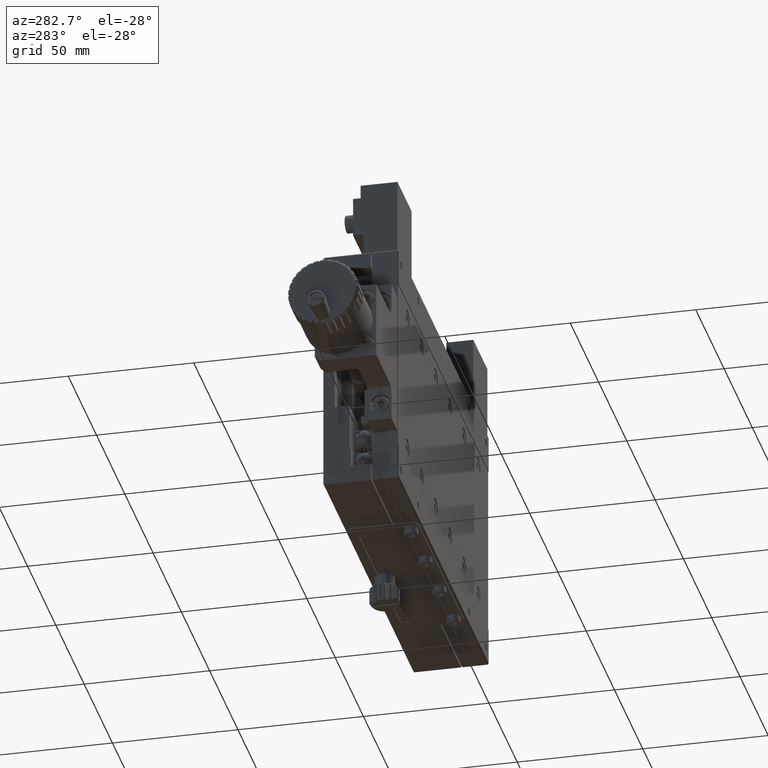
[diagram: clean part render]
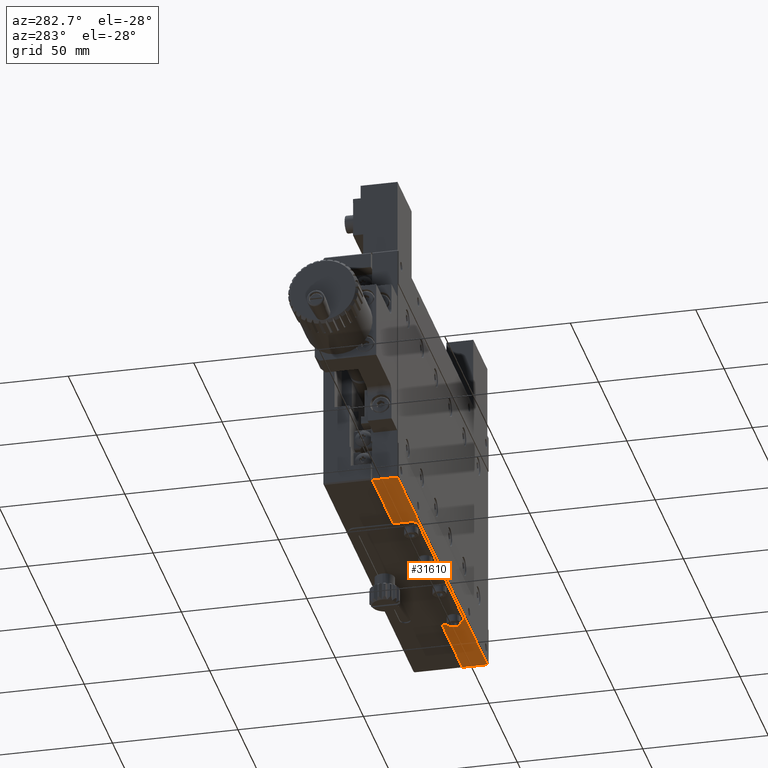
[diagram: same view with one face highlighted and labeled with its STEP entity id]
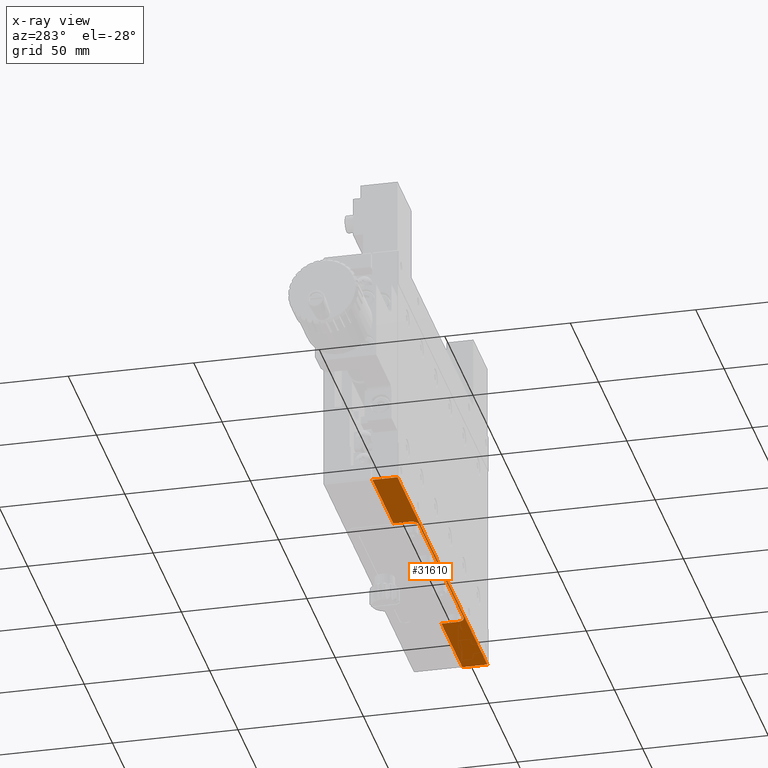
[diagram: x-ray of the same camera — body ghosted, the highlighted face saturated]
A machine part, auxiliary view. The second image highlights one B-rep face of the part: STEP entity #31610.
The next image is the same camera in x-ray: the body ghosted, the highlighted face saturated — about 0% of this face is hidden behind the body in this view.
In plain terms, the highlighted planar face has unit normal (0, 0, -1).
Its self-contained STEP definition (entity closure, byte-faithful):
#1115 = CARTESIAN_POINT ( 'NONE',  ( -160.0000000000000000, 1.000000000000000000, -50.00000000000000000 ) ) ;
#2796 = CIRCLE ( 'NONE', #11324, 2.999999999999988898 ) ;
#2947 = VECTOR ( 'NONE', #64080, 1000.000000000000000 ) ;
#4222 = VECTOR ( 'NONE', #51690, 1000.000000000000000 ) ;
#4476 = VERTEX_POINT ( 'NONE', #37559 ) ;
#5977 = CARTESIAN_POINT ( 'NONE',  ( -160.0000000000000000, 0.000000000000000000, -50.00000000000000000 ) ) ;
#6650 = ORIENTED_EDGE ( 'NONE', *, *, #15115, .T. ) ;
#8737 = EDGE_LOOP ( 'NONE', ( #6650, #31222, #51162, #60116, #9881, #65215, #45783, #13491, #15510, #38415 ) ) ;
#8914 = VECTOR ( 'NONE', #13720, 1000.000000000000000 ) ;
#9881 = ORIENTED_EDGE ( 'NONE', *, *, #65631, .T. ) ;
#10113 = DIRECTION ( 'NONE',  ( 0.000000000000000000, 1.000000000000000000, 0.000000000000000000 ) ) ;
#11324 = AXIS2_PLACEMENT_3D ( 'NONE', #46568, #21253, #57542 ) ;
#11651 = PLANE ( 'NONE',  #12287 ) ;
#12033 = CARTESIAN_POINT ( 'NONE',  ( -37.50000000000000711, 3.999999999999994671, -50.00000000000000000 ) ) ;
#12287 = AXIS2_PLACEMENT_3D ( 'NONE', #5977, #46942, #42273 ) ;
#13491 = ORIENTED_EDGE ( 'NONE', *, *, #33613, .T. ) ;
#13686 = VERTEX_POINT ( 'NONE', #30382 ) ;
#13720 = DIRECTION ( 'NONE',  ( -1.000000000000000000, -0.000000000000000000, 0.000000000000000000 ) ) ;
#14600 = VECTOR ( 'NONE', #10113, 1000.000000000000000 ) ;
#14663 = VECTOR ( 'NONE', #34383, 1000.000000000000000 ) ;
#15100 = CARTESIAN_POINT ( 'NONE',  ( -122.5000000000000000, 0.000000000000000000, -50.00000000000000000 ) ) ;
#15115 = EDGE_CURVE ( 'NONE', #4476, #50269, #24333, .T. ) ;
#15455 = VERTEX_POINT ( 'NONE', #49907 ) ;
#15510 = ORIENTED_EDGE ( 'NONE', *, *, #49109, .F. ) ;
#15907 = EDGE_CURVE ( 'NONE', #63096, #50269, #65745, .T. ) ;
#16101 = DIRECTION ( 'NONE',  ( 1.000000000000000000, -0.000000000000000000, 0.000000000000000000 ) ) ;
#16184 = EDGE_CURVE ( 'NONE', #62604, #63096, #24008, .T. ) ;
#18183 = CARTESIAN_POINT ( 'NONE',  ( -122.5000000000000000, 10.50000000000000000, -50.00000000000000000 ) ) ;
#20559 = CARTESIAN_POINT ( 'NONE',  ( -119.5000000000000142, 1.000000000000000000, -50.00000000000000000 ) ) ;
#21253 = DIRECTION ( 'NONE',  ( 0.000000000000000000, 0.000000000000000000, 1.000000000000000000 ) ) ;
#23995 = DIRECTION ( 'NONE',  ( -1.000000000000000000, -0.000000000000000000, -0.000000000000000000 ) ) ;
#24008 = LINE ( 'NONE', #64328, #8914 ) ;
#24333 = LINE ( 'NONE', #44657, #63543 ) ;
#27481 = CARTESIAN_POINT ( 'NONE',  ( -160.0000000000000000, 10.50000000000000000, -50.00000000000000000 ) ) ;
#29974 = LINE ( 'NONE', #39974, #35157 ) ;
#30042 = CARTESIAN_POINT ( 'NONE',  ( -159.5000000000000000, 10.50000000000000178, -50.00000000000000000 ) ) ;
#30382 = CARTESIAN_POINT ( 'NONE',  ( -37.50000000000000711, 10.50000000000000000, -50.00000000000000000 ) ) ;
#31125 = VERTEX_POINT ( 'NONE', #12033 ) ;
#31222 = ORIENTED_EDGE ( 'NONE', *, *, #15907, .F. ) ;
#31610 = ADVANCED_FACE ( 'NONE', ( #57910 ), #11651, .T. ) ;
#33057 = DIRECTION ( 'NONE',  ( 1.000000000000000000, 0.000000000000000000, 0.000000000000000000 ) ) ;
#33613 = EDGE_CURVE ( 'NONE', #31125, #13686, #55702, .T. ) ;
#34383 = DIRECTION ( 'NONE',  ( -0.000000000000000000, -1.000000000000000000, 0.000000000000000000 ) ) ;
#35157 = VECTOR ( 'NONE', #45299, 1000.000000000000000 ) ;
#35381 = LINE ( 'NONE', #15100, #4222 ) ;
#37281 = CARTESIAN_POINT ( 'NONE',  ( -40.50000000000000711, 1.000000000000000000, -50.00000000000000000 ) ) ;
#37559 = CARTESIAN_POINT ( 'NONE',  ( -0.5000000000000004441, 0.5000000000000001110, -50.00000000000000000 ) ) ;
#38415 = ORIENTED_EDGE ( 'NONE', *, *, #64748, .T. ) ;
#38757 = LINE ( 'NONE', #27481, #2947 ) ;
#39054 = DIRECTION ( 'NONE',  ( 0.000000000000000000, 0.000000000000000000, 1.000000000000000000 ) ) ;
#39329 = EDGE_CURVE ( 'NONE', #51036, #56901, #61717, .T. ) ;
#39974 = CARTESIAN_POINT ( 'NONE',  ( -0.5000000000000004441, 0.000000000000000000, -50.00000000000000000 ) ) ;
#40420 = CARTESIAN_POINT ( 'NONE',  ( -159.5000000000000000, 0.000000000000000000, -50.00000000000000000 ) ) ;
#42273 = DIRECTION ( 'NONE',  ( -1.000000000000000000, 0.000000000000000000, -0.000000000000000000 ) ) ;
#44657 = CARTESIAN_POINT ( 'NONE',  ( -160.0000000000000000, 0.4999999999999997780, -50.00000000000000000 ) ) ;
#45299 = DIRECTION ( 'NONE',  ( -0.000000000000000000, -1.000000000000000000, 0.000000000000000000 ) ) ;
#45783 = ORIENTED_EDGE ( 'NONE', *, *, #47587, .T. ) ;
#46568 = CARTESIAN_POINT ( 'NONE',  ( -40.50000000000000000, 3.999999999999989786, -50.00000000000000000 ) ) ;
#46942 = DIRECTION ( 'NONE',  ( 0.000000000000000000, 0.000000000000000000, -1.000000000000000000 ) ) ;
#47346 = CARTESIAN_POINT ( 'NONE',  ( -159.5000000000000000, 0.5000000000000002220, -50.00000000000000000 ) ) ;
#47587 = EDGE_CURVE ( 'NONE', #56901, #31125, #2796, .T. ) ;
#49109 = EDGE_CURVE ( 'NONE', #15455, #13686, #38757, .T. ) ;
#49907 = CARTESIAN_POINT ( 'NONE',  ( -0.5000000000000002220, 10.50000000000000178, -50.00000000000000000 ) ) ;
#50269 = VERTEX_POINT ( 'NONE', #47346 ) ;
#51036 = VERTEX_POINT ( 'NONE', #20559 ) ;
#51162 = ORIENTED_EDGE ( 'NONE', *, *, #16184, .F. ) ;
#51690 = DIRECTION ( 'NONE',  ( -0.000000000000000000, -1.000000000000000000, -0.000000000000000000 ) ) ;
#51829 = EDGE_CURVE ( 'NONE', #62604, #52142, #35381, .T. ) ;
#52142 = VERTEX_POINT ( 'NONE', #52453 ) ;
#52453 = CARTESIAN_POINT ( 'NONE',  ( -122.5000000000000000, 3.999999999999994671, -50.00000000000000000 ) ) ;
#55702 = LINE ( 'NONE', #61038, #14600 ) ;
#56901 = VERTEX_POINT ( 'NONE', #37281 ) ;
#57523 = VECTOR ( 'NONE', #16101, 1000.000000000000000 ) ;
#57542 = DIRECTION ( 'NONE',  ( 1.000000000000000000, 0.000000000000000000, 0.000000000000000000 ) ) ;
#57910 = FACE_OUTER_BOUND ( 'NONE', #8737, .T. ) ;
#59375 = CARTESIAN_POINT ( 'NONE',  ( -119.5000000000000142, 3.999999999999989786, -50.00000000000000000 ) ) ;
#60116 = ORIENTED_EDGE ( 'NONE', *, *, #51829, .T. ) ;
#61038 = CARTESIAN_POINT ( 'NONE',  ( -37.50000000000000711, 0.000000000000000000, -50.00000000000000000 ) ) ;
#61717 = LINE ( 'NONE', #1115, #57523 ) ;
#61904 = CIRCLE ( 'NONE', #63971, 2.999999999999988898 ) ;
#62604 = VERTEX_POINT ( 'NONE', #18183 ) ;
#63096 = VERTEX_POINT ( 'NONE', #30042 ) ;
#63543 = VECTOR ( 'NONE', #23995, 1000.000000000000000 ) ;
#63971 = AXIS2_PLACEMENT_3D ( 'NONE', #59375, #39054, #33057 ) ;
#64080 = DIRECTION ( 'NONE',  ( -1.000000000000000000, -0.000000000000000000, 0.000000000000000000 ) ) ;
#64328 = CARTESIAN_POINT ( 'NONE',  ( -160.0000000000000000, 10.50000000000000000, -50.00000000000000000 ) ) ;
#64748 = EDGE_CURVE ( 'NONE', #15455, #4476, #29974, .T. ) ;
#65215 = ORIENTED_EDGE ( 'NONE', *, *, #39329, .T. ) ;
#65631 = EDGE_CURVE ( 'NONE', #52142, #51036, #61904, .T. ) ;
#65745 = LINE ( 'NONE', #40420, #14663 ) ;